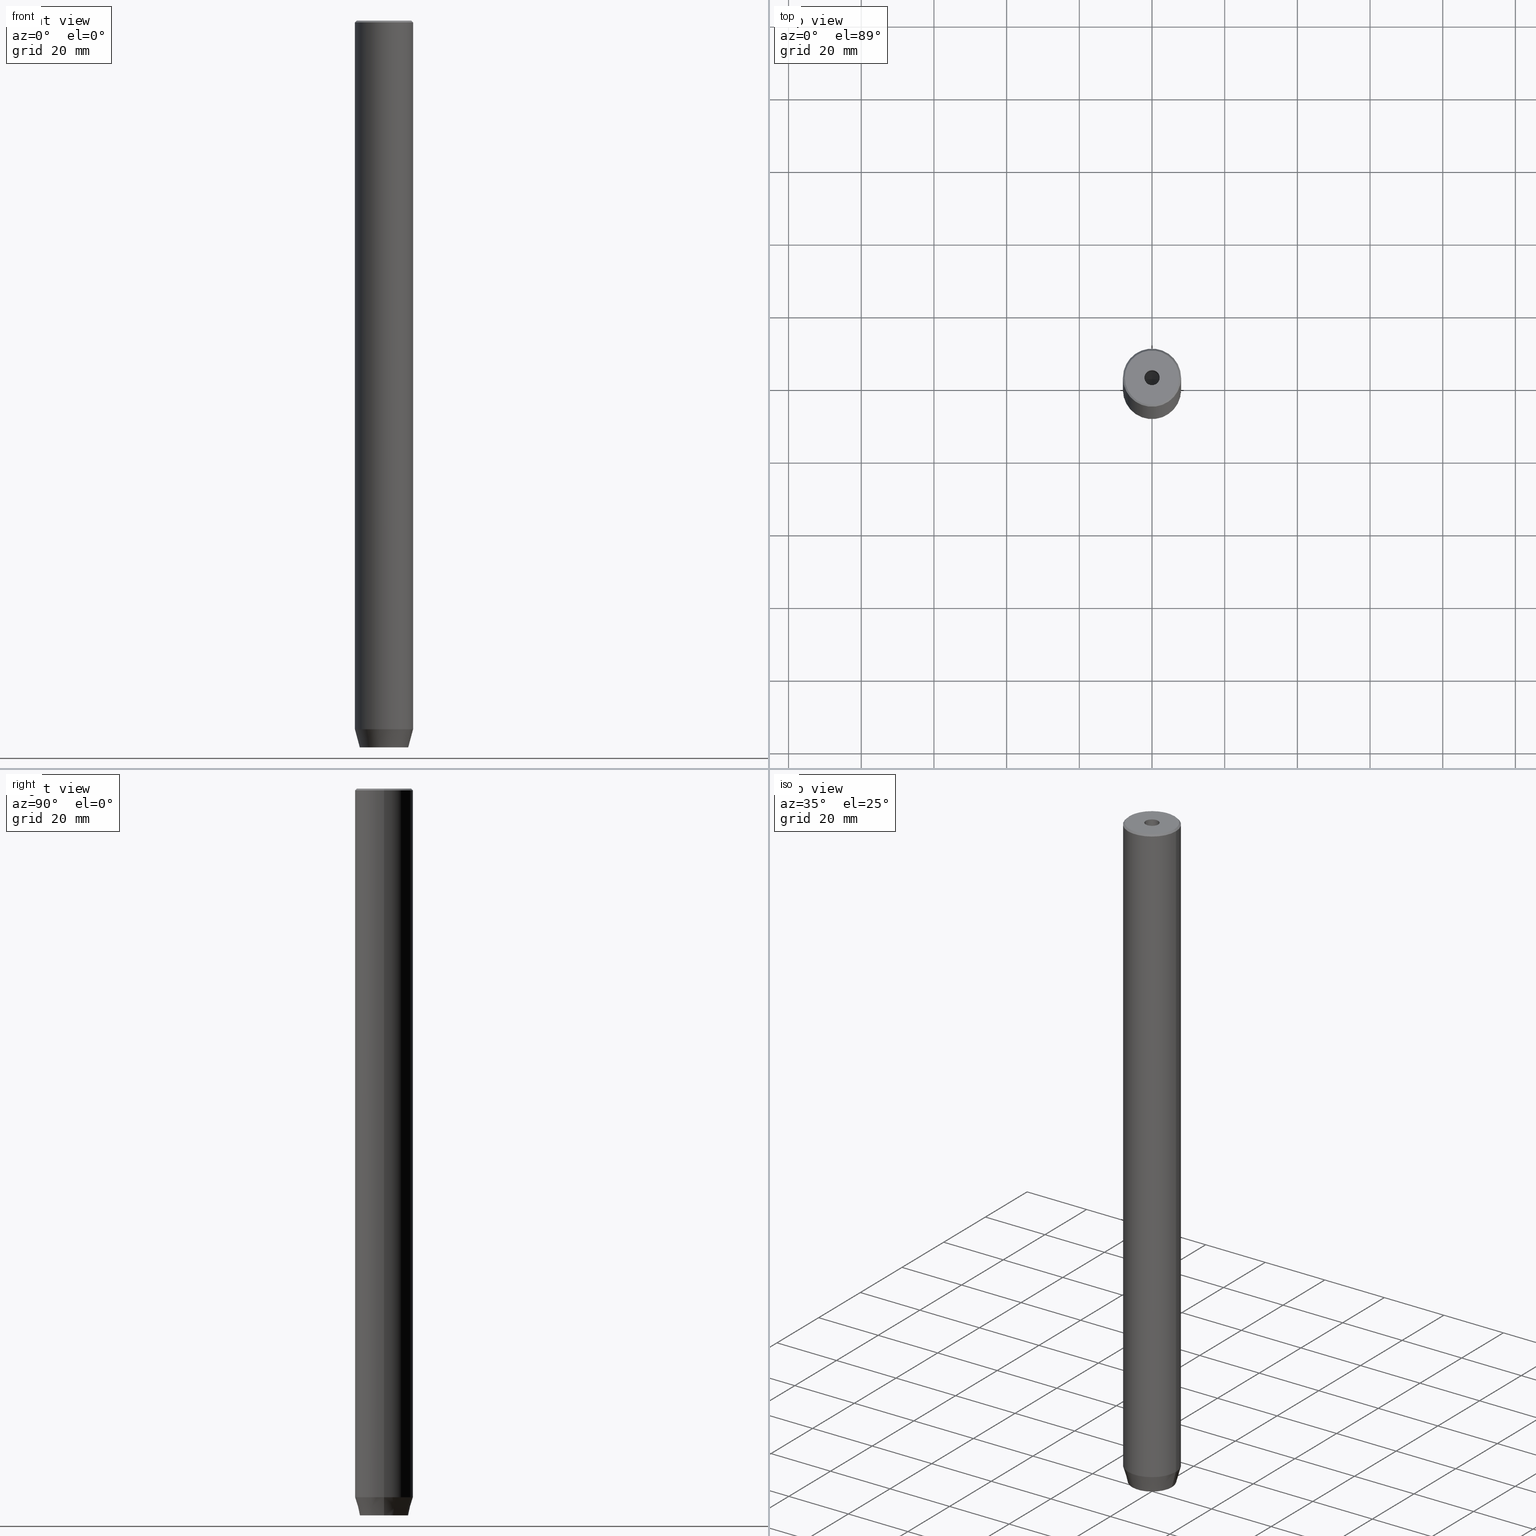
[diagram: canonical four-view strip — front | top / right | iso, engineering-drawing reading convention]
A machine part, canonical four-view strip (front | top / right | iso — engineering-drawing reading convention). The complete STEP part file that produces these views, byte-faithful:
ISO-10303-21;
HEADER;
FILE_DESCRIPTION (( 'STEP AP203' ),
    '1' );
FILE_NAME ('929a.STEP',
    '2024-01-02T20:38:08',
    ( '' ),
    ( '' ),
    'SwSTEP 2.0',
    'SolidWorks 2019',
    '' );
FILE_SCHEMA (( 'CONFIG_CONTROL_DESIGN' ));
ENDSEC;

DATA;
#1 = ORIENTED_EDGE ( 'NONE', *, *, #221, .T. ) ;
#2 = DIRECTION ( 'NONE',  ( -0.000000000000000000, -0.000000000000000000, 1.000000000000000000 ) ) ;
#3 = ORIENTED_EDGE ( 'NONE', *, *, #482, .T. ) ;
#4 = CARTESIAN_POINT ( 'NONE',  ( 0.000000000000000000, 0.000000000000000000, 0.000000000000000000 ) ) ;
#5 = ORIENTED_EDGE ( 'NONE', *, *, #334, .T. ) ;
#6 = LINE ( 'NONE', #587, #357 ) ;
#7 = PLANE ( 'NONE',  #215 ) ;
#8 = ADVANCED_FACE ( 'NONE', ( #364 ), #252, .T. ) ;
#9 = CC_DESIGN_PERSON_AND_ORGANIZATION_ASSIGNMENT ( #444, #572, ( #176 ) ) ;
#10 = CARTESIAN_POINT ( 'NONE',  ( 8.000000000000000000, 0.000000000000000000, -195.0000000000000000 ) ) ;
#11 = ORIENTED_EDGE ( 'NONE', *, *, #75, .F. ) ;
#12 = VERTEX_POINT ( 'NONE', #234 ) ;
#13 = AXIS2_PLACEMENT_3D ( 'NONE', #290, #149, #324 ) ;
#14 = ORIENTED_EDGE ( 'NONE', *, *, #75, .T. ) ;
#15 = AXIS2_PLACEMENT_3D ( 'NONE', #249, #292, #481 ) ;
#16 = VERTEX_POINT ( 'NONE', #92 ) ;
#17 = CARTESIAN_POINT ( 'NONE',  ( 1.500000000000000222, -2.598076211353315568, -197.2000000000000171 ) ) ;
#18 = DIRECTION ( 'NONE',  ( 0.000000000000000000, 0.000000000000000000, -1.000000000000000000 ) ) ;
#19 = EDGE_CURVE ( 'NONE', #490, #502, #282, .T. ) ;
#20 = DIRECTION ( 'NONE',  ( 1.000000000000000000, 0.000000000000000000, 0.000000000000000000 ) ) ;
#21 = APPLICATION_CONTEXT ( 'configuration controlled 3d designs of mechanical parts and assemblies' ) ;
#22 = LINE ( 'NONE', #242, #163 ) ;
#23 = AXIS2_PLACEMENT_3D ( 'NONE', #581, #546, #504 ) ;
#24 = VECTOR ( 'NONE', #550, 1000.000000000000000 ) ;
#25 = DIRECTION ( 'NONE',  ( 0.8660254037844385966, -0.5000000000000001110, 0.000000000000000000 ) ) ;
#26 = COORDINATED_UNIVERSAL_TIME_OFFSET ( 1, 0, .AHEAD. ) ;
#27 = LINE ( 'NONE', #206, #60 ) ;
#28 = DIRECTION ( 'NONE',  ( 1.000000000000000000, 0.000000000000000000, 0.000000000000000000 ) ) ;
#29 = CYLINDRICAL_SURFACE ( 'NONE', #87, 2.099999999999997424 ) ;
#30 = CARTESIAN_POINT ( 'NONE',  ( 2.099999999999996092, 0.000000000000000000, -20.00000000000000000 ) ) ;
#31 = ADVANCED_FACE ( 'NONE', ( #478 ), #577, .F. ) ;
#32 = LINE ( 'NONE', #281, #328 ) ;
#33 = ORIENTED_EDGE ( 'NONE', *, *, #396, .F. ) ;
#34 = APPROVAL_DATE_TIME ( #390, #51 ) ;
#35 = EDGE_CURVE ( 'NONE', #259, #104, #32, .T. ) ;
#36 = SECURITY_CLASSIFICATION_LEVEL ( 'unclassified' ) ;
#37 = LINE ( 'NONE', #437, #247 ) ;
#38 = CALENDAR_DATE ( 2024, 2, 1 ) ;
#39 = AXIS2_PLACEMENT_3D ( 'NONE', #467, #571, #325 ) ;
#40 = DIRECTION ( 'NONE',  ( 0.000000000000000000, 0.000000000000000000, -1.000000000000000000 ) ) ;
#41 = ORIENTED_EDGE ( 'NONE', *, *, #287, .F. ) ;
#42 = PLANE ( 'NONE',  #238 ) ;
#43 = ORIENTED_EDGE ( 'NONE', *, *, #266, .F. ) ;
#44 = ORIENTED_EDGE ( 'NONE', *, *, #19, .F. ) ;
#45 = CARTESIAN_POINT ( 'NONE',  ( -8.000000000000000000, 9.797174393178825657E-16, -195.0000000000000000 ) ) ;
#46 = LOCAL_TIME ( 21, 38, 8.000000000000000000, #532 ) ;
#47 = ORIENTED_EDGE ( 'NONE', *, *, #349, .T. ) ;
#48 = LINE ( 'NONE', #499, #442 ) ;
#49 = ADVANCED_FACE ( 'NONE', ( #121 ), #71, .F. ) ;
#50 = ORIENTED_EDGE ( 'NONE', *, *, #88, .T. ) ;
#51 = APPROVAL ( #342, 'NEUR�EN�' ) ;
#52 = DIRECTION ( 'NONE',  ( 1.000000000000000000, 0.000000000000000000, 0.000000000000000000 ) ) ;
#53 = ORIENTED_EDGE ( 'NONE', *, *, #541, .T. ) ;
#54 = DIRECTION ( 'NONE',  ( 0.000000000000000000, 0.000000000000000000, 1.000000000000000000 ) ) ;
#55 = DIRECTION ( 'NONE',  ( -0.8660254037844385966, 0.5000000000000001110, 0.000000000000000000 ) ) ;
#56 = DIRECTION ( 'NONE',  ( -0.000000000000000000, -0.000000000000000000, 1.000000000000000000 ) ) ;
#57 = VECTOR ( 'NONE', #451, 1000.000000000000000 ) ;
#58 = DIRECTION ( 'NONE',  ( 1.000000000000000000, 0.000000000000000000, 0.000000000000000000 ) ) ;
#59 = LINE ( 'NONE', #175, #162 ) ;
#60 = VECTOR ( 'NONE', #197, 1000.000000000000000 ) ;
#61 = ADVANCED_FACE ( 'NONE', ( #201 ), #507, .F. ) ;
#62 = AXIS2_PLACEMENT_3D ( 'NONE', #17, #116, #413 ) ;
#63 =( NAMED_UNIT ( * ) SI_UNIT ( $, .STERADIAN. ) SOLID_ANGLE_UNIT ( ) );
#64 = VERTEX_POINT ( 'NONE', #436 ) ;
#65 = UNCERTAINTY_MEASURE_WITH_UNIT (LENGTH_MEASURE( 1.000000000000000082E-05 ), #152, 'distance_accuracy_value', 'NONE');
#66 = LINE ( 'NONE', #156, #544 ) ;
#67 = PERSON_AND_ORGANIZATION_ROLE ( 'creator' ) ;
#68 = DIRECTION ( 'NONE',  ( -0.000000000000000000, -0.000000000000000000, -1.000000000000000000 ) ) ;
#69 = EDGE_CURVE ( 'NONE', #128, #16, #337, .T. ) ;
#70 = COORDINATED_UNIVERSAL_TIME_OFFSET ( 1, 0, .AHEAD. ) ;
#71 = PLANE ( 'NONE',  #263 ) ;
#72 = COORDINATED_UNIVERSAL_TIME_OFFSET ( 1, 0, .AHEAD. ) ;
#73 = PERSON_AND_ORGANIZATION ( #240, #416 ) ;
#74 = LINE ( 'NONE', #533, #417 ) ;
#75 = EDGE_CURVE ( 'NONE', #94, #449, #383, .T. ) ;
#76 = AXIS2_PLACEMENT_3D ( 'NONE', #362, #174, #142 ) ;
#77 = AXIS2_PLACEMENT_3D ( 'NONE', #578, #295, #28 ) ;
#78 = AXIS2_PLACEMENT_3D ( 'NONE', #272, #18, #509 ) ;
#79 = APPROVAL_STATUS ( 'not_yet_approved' ) ;
#80 = APPLICATION_CONTEXT ( 'configuration controlled 3d designs of mechanical parts and assemblies' ) ;
#81 = CARTESIAN_POINT ( 'NONE',  ( -1.499999999999999556, 2.598076211353316012, -197.2000000000000171 ) ) ;
#82 = ORIENTED_EDGE ( 'NONE', *, *, #132, .F. ) ;
#83 = ORIENTED_EDGE ( 'NONE', *, *, #541, .F. ) ;
#84 = FACE_OUTER_BOUND ( 'NONE', #119, .T. ) ;
#85 = APPROVAL_PERSON_ORGANIZATION ( #391, #51, #257 ) ;
#86 = AXIS2_PLACEMENT_3D ( 'NONE', #464, #414, #315 ) ;
#87 = AXIS2_PLACEMENT_3D ( 'NONE', #316, #246, #528 ) ;
#88 = EDGE_CURVE ( 'NONE', #402, #128, #584, .T. ) ;
#89 = CARTESIAN_POINT ( 'NONE',  ( 8.000000000000000000, 0.000000000000000000, -195.0000000000000000 ) ) ;
#90 = ORIENTED_EDGE ( 'NONE', *, *, #19, .T. ) ;
#91 = CARTESIAN_POINT ( 'NONE',  ( -3.000000000000000888, 1.732050807568876527, -197.2000000000000171 ) ) ;
#92 = CARTESIAN_POINT ( 'NONE',  ( 2.099999999999998757, 0.000000000000000000, -1.990051048614449116E-16 ) ) ;
#93 = CARTESIAN_POINT ( 'NONE',  ( 0.000000000000000000, 0.000000000000000000, 0.000000000000000000 ) ) ;
#94 = VERTEX_POINT ( 'NONE', #466 ) ;
#95 = LINE ( 'NONE', #91, #57 ) ;
#96 = EDGE_CURVE ( 'NONE', #495, #186, #501, .T. ) ;
#97 = CARTESIAN_POINT ( 'NONE',  ( 3.000000000000000000, 0.000000000000000000, -200.0000000000000000 ) ) ;
#98 = ORIENTED_EDGE ( 'NONE', *, *, #170, .T. ) ;
#99 = AXIS2_PLACEMENT_3D ( 'NONE', #513, #377, #566 ) ;
#100 = CARTESIAN_POINT ( 'NONE',  ( 6.660254037844381969, 0.000000000000000000, -200.0000000000000000 ) ) ;
#101 = VECTOR ( 'NONE', #348, 1000.000000000000000 ) ;
#102 = VERTEX_POINT ( 'NONE', #190 ) ;
#103 = CARTESIAN_POINT ( 'NONE',  ( 0.000000000000000000, 0.000000000000000000, -195.0000000000000000 ) ) ;
#104 = VERTEX_POINT ( 'NONE', #151 ) ;
#105 = DIRECTION ( 'NONE',  ( -0.7071067811865279218, 0.000000000000000000, -0.7071067811865672237 ) ) ;
#106 = DIRECTION ( 'NONE',  ( -0.000000000000000000, -0.000000000000000000, -1.000000000000000000 ) ) ;
#107 = DIRECTION ( 'NONE',  ( 0.2588190451025213501, 0.000000000000000000, 0.9659258262890680902 ) ) ;
#108 = ADVANCED_FACE ( 'NONE', ( #426 ), #296, .T. ) ;
#109 = CIRCLE ( 'NONE', #484, 2.099999999999996092 ) ;
#110 = DIRECTION ( 'NONE',  ( -0.000000000000000000, -0.000000000000000000, -1.000000000000000000 ) ) ;
#111 = ORIENTED_EDGE ( 'NONE', *, *, #387, .F. ) ;
#112 = AXIS2_PLACEMENT_3D ( 'NONE', #103, #411, #361 ) ;
#113 = AXIS2_PLACEMENT_3D ( 'NONE', #359, #303, #220 ) ;
#114 = VECTOR ( 'NONE', #110, 1000.000000000000000 ) ;
#115 = CARTESIAN_POINT ( 'NONE',  ( 0.000000000000000000, 0.000000000000000000, -1.990051048614449116E-16 ) ) ;
#116 = DIRECTION ( 'NONE',  ( 0.5000000000000001110, -0.8660254037844385966, 0.000000000000000000 ) ) ;
#117 = DIRECTION ( 'NONE',  ( 1.000000000000000000, 0.000000000000000000, 0.000000000000000000 ) ) ;
#118 = CARTESIAN_POINT ( 'NONE',  ( -2.168404344971008868E-16, -3.464101615137754830, -197.2000000000000171 ) ) ;
#119 = EDGE_LOOP ( 'NONE', ( #399, #294, #374, #559, #178, #173 ) ) ;
#120 = ADVANCED_FACE ( 'NONE', ( #288 ), #385, .F. ) ;
#121 = FACE_OUTER_BOUND ( 'NONE', #258, .T. ) ;
#122 = DIRECTION ( 'NONE',  ( -0.000000000000000000, -0.000000000000000000, -1.000000000000000000 ) ) ;
#123 = VECTOR ( 'NONE', #398, 1000.000000000000000 ) ;
#124 = DIRECTION ( 'NONE',  ( 1.000000000000000000, 0.000000000000000000, 0.000000000000000000 ) ) ;
#125 = PERSON_AND_ORGANIZATION_ROLE ( 'classification_officer' ) ;
#126 = LINE ( 'NONE', #565, #308 ) ;
#127 = EDGE_CURVE ( 'NONE', #331, #537, #343, .T. ) ;
#128 = VERTEX_POINT ( 'NONE', #519 ) ;
#129 = LOCAL_TIME ( 21, 38, 8.000000000000000000, #244 ) ;
#130 = VECTOR ( 'NONE', #106, 1000.000000000000000 ) ;
#131 = DIRECTION ( 'NONE',  ( 1.000000000000000000, 0.000000000000000000, 0.000000000000000000 ) ) ;
#132 = EDGE_CURVE ( 'NONE', #16, #128, #225, .T. ) ;
#133 = CARTESIAN_POINT ( 'NONE',  ( 1.500000000000000222, -2.598076211353315568, -197.2000000000000171 ) ) ;
#134 = EDGE_LOOP ( 'NONE', ( #195, #98, #339, #392 ) ) ;
#135 = CARTESIAN_POINT ( 'NONE',  ( -2.099999999999997424, 2.571758278209438506E-16, 0.000000000000000000 ) ) ;
#136 = ADVANCED_BREP_SHAPE_REPRESENTATION ( '929a', ( #485, #183 ), #475 ) ;
#137 = ORIENTED_EDGE ( 'NONE', *, *, #189, .F. ) ;
#138 = PLANE ( 'NONE',  #557 ) ;
#139 = ORIENTED_EDGE ( 'NONE', *, *, #189, .T. ) ;
#140 = DIRECTION ( 'NONE',  ( 2.503857664561933362E-16, -1.000000000000000000, 0.000000000000000000 ) ) ;
#141 = APPROVAL ( #570, 'NEUR�EN�' ) ;
#142 = DIRECTION ( 'NONE',  ( -0.000000000000000000, 0.000000000000000000, -1.000000000000000000 ) ) ;
#143 = ORIENTED_EDGE ( 'NONE', *, *, #241, .F. ) ;
#144 = FACE_BOUND ( 'NONE', #497, .T. ) ;
#145 = AXIS2_PLACEMENT_3D ( 'NONE', #193, #198, #124 ) ;
#146 = ORIENTED_EDGE ( 'NONE', *, *, #482, .F. ) ;
#147 = PERSON_AND_ORGANIZATION ( #240, #416 ) ;
#148 = VERTEX_POINT ( 'NONE', #150 ) ;
#149 = DIRECTION ( 'NONE',  ( 0.000000000000000000, 0.000000000000000000, -1.000000000000000000 ) ) ;
#150 = CARTESIAN_POINT ( 'NONE',  ( -3.000000000000000888, 1.732050807568876527, -197.2000000000000171 ) ) ;
#151 = CARTESIAN_POINT ( 'NONE',  ( 3.000000000000000000, 1.732050807568876527, -200.0000000000000000 ) ) ;
#152 =( LENGTH_UNIT ( ) NAMED_UNIT ( * ) SI_UNIT ( .MILLI., .METRE. ) );
#153 = ORIENTED_EDGE ( 'NONE', *, *, #582, .F. ) ;
#154 = AXIS2_PLACEMENT_3D ( 'NONE', #336, #333, #431 ) ;
#155 = VECTOR ( 'NONE', #341, 1000.000000000000000 ) ;
#156 = CARTESIAN_POINT ( 'NONE',  ( 2.099999999999997424, 0.000000000000000000, 0.000000000000000000 ) ) ;
#157 = CARTESIAN_POINT ( 'NONE',  ( 3.000000000000000000, 1.732050807568876527, -197.2000000000000171 ) ) ;
#158 = EDGE_CURVE ( 'NONE', #537, #331, #168, .T. ) ;
#159 = SHAPE_DEFINITION_REPRESENTATION ( #421, #136 ) ;
#160 = APPROVAL_DATE_TIME ( #574, #330 ) ;
#161 = PRODUCT ( '929a', '929a', '', ( #560 ) ) ;
#162 = VECTOR ( 'NONE', #271, 1000.000000000000000 ) ;
#163 = VECTOR ( 'NONE', #122, 1000.000000000000000 ) ;
#164 = EDGE_CURVE ( 'NONE', #452, #304, #381, .T. ) ;
#165 = CARTESIAN_POINT ( 'NONE',  ( 1.500000000000000222, -2.598076211353315568, -200.0000000000000000 ) ) ;
#166 = DIRECTION ( 'NONE',  ( -2.503857664561932376E-16, 1.000000000000000000, 0.000000000000000000 ) ) ;
#167 = SECURITY_CLASSIFICATION ( '', '', #36 ) ;
#168 = CIRCLE ( 'NONE', #299, 7.500000000000034639 ) ;
#169 = LINE ( 'NONE', #250, #368 ) ;
#170 = EDGE_CURVE ( 'NONE', #537, #94, #37, .T. ) ;
#171 = LINE ( 'NONE', #260, #569 ) ;
#172 = ORIENTED_EDGE ( 'NONE', *, *, #177, .F. ) ;
#173 = ORIENTED_EDGE ( 'NONE', *, *, #177, .T. ) ;
#174 = DIRECTION ( 'NONE',  ( 1.000000000000000000, 0.000000000000000000, -0.000000000000000000 ) ) ;
#175 = CARTESIAN_POINT ( 'NONE',  ( -1.500000000000000666, -2.598076211353316456, -197.2000000000000171 ) ) ;
#176 = PRODUCT_DEFINITION_FORMATION_WITH_SPECIFIED_SOURCE ( 'LIBOVOLN�', '', #161, .NOT_KNOWN. ) ;
#177 = EDGE_CURVE ( 'NONE', #64, #148, #169, .T. ) ;
#178 = ORIENTED_EDGE ( 'NONE', *, *, #212, .T. ) ;
#179 = CARTESIAN_POINT ( 'NONE',  ( -8.000000000000000000, 9.797174393178825657E-16, -0.4999999999999935052 ) ) ;
#180 = FACE_OUTER_BOUND ( 'NONE', #542, .T. ) ;
#181 = DIRECTION ( 'NONE',  ( 0.000000000000000000, 0.000000000000000000, -1.000000000000000000 ) ) ;
#182 = CARTESIAN_POINT ( 'NONE',  ( -2.168404344971008868E-16, -3.464101615137754830, -197.2000000000000171 ) ) ;
#183 = AXIS2_PLACEMENT_3D ( 'NONE', #327, #54, #20 ) ;
#184 = ORIENTED_EDGE ( 'NONE', *, *, #127, .T. ) ;
#185 = CIRCLE ( 'NONE', #86, 2.099999999999996092 ) ;
#186 = VERTEX_POINT ( 'NONE', #210 ) ;
#187 = ORIENTED_EDGE ( 'NONE', *, *, #576, .T. ) ;
#188 = CARTESIAN_POINT ( 'NONE',  ( 0.000000000000000000, 0.000000000000000000, 0.000000000000000000 ) ) ;
#189 = EDGE_CURVE ( 'NONE', #104, #12, #535, .T. ) ;
#190 = CARTESIAN_POINT ( 'NONE',  ( -5.207640850796248781E-15, 0.000000000000000000, -21.26180729995787999 ) ) ;
#191 =( NAMED_UNIT ( * ) PLANE_ANGLE_UNIT ( ) SI_UNIT ( $, .RADIAN. ) );
#192 = EDGE_LOOP ( 'NONE', ( #420, #50, #548, #306 ) ) ;
#193 = CARTESIAN_POINT ( 'NONE',  ( 0.000000000000000000, 0.000000000000000000, -200.0000000000000000 ) ) ;
#194 = ADVANCED_FACE ( 'NONE', ( #268 ), #350, .T. ) ;
#195 = ORIENTED_EDGE ( 'NONE', *, *, #158, .F. ) ;
#196 = CARTESIAN_POINT ( 'NONE',  ( 0.000000000000000000, 0.000000000000000000, -200.0000000000000000 ) ) ;
#197 = DIRECTION ( 'NONE',  ( -0.000000000000000000, -0.000000000000000000, 1.000000000000000000 ) ) ;
#198 = DIRECTION ( 'NONE',  ( -0.000000000000000000, -0.000000000000000000, 1.000000000000000000 ) ) ;
#199 = EDGE_CURVE ( 'NONE', #402, #219, #185, .T. ) ;
#200 = DIRECTION ( 'NONE',  ( 0.000000000000000000, -1.000000000000000000, 0.000000000000000000 ) ) ;
#201 = FACE_OUTER_BOUND ( 'NONE', #352, .T. ) ;
#202 = CARTESIAN_POINT ( 'NONE',  ( -3.000000000000000888, 1.732050807568876527, -200.0000000000000000 ) ) ;
#203 = AXIS2_PLACEMENT_3D ( 'NONE', #508, #461, #424 ) ;
#204 = LOCAL_TIME ( 21, 38, 8.000000000000000000, #72 ) ;
#205 = PERSON_AND_ORGANIZATION_ROLE ( 'design_supplier' ) ;
#206 = CARTESIAN_POINT ( 'NONE',  ( 8.000000000000000000, 0.000000000000000000, 0.000000000000000000 ) ) ;
#207 = VERTEX_POINT ( 'NONE', #471 ) ;
#208 = DATE_AND_TIME ( #38, #204 ) ;
#209 = DIRECTION ( 'NONE',  ( 0.8660254037844387076, 0.4999999999999999445, 0.000000000000000000 ) ) ;
#210 = CARTESIAN_POINT ( 'NONE',  ( 3.000000000000000000, -1.732050807568876527, -197.2000000000000171 ) ) ;
#211 = DATE_TIME_ROLE ( 'classification_date' ) ;
#212 = EDGE_CURVE ( 'NONE', #313, #64, #59, .T. ) ;
#213 = LINE ( 'NONE', #165, #155 ) ;
#214 = CC_DESIGN_DATE_AND_TIME_ASSIGNMENT ( #208, #211, ( #167 ) ) ;
#215 = AXIS2_PLACEMENT_3D ( 'NONE', #227, #408, #140 ) ;
#216 = CARTESIAN_POINT ( 'NONE',  ( -1.500000000000000666, -2.598076211353316456, -200.0000000000000000 ) ) ;
#217 = FACE_OUTER_BOUND ( 'NONE', #276, .T. ) ;
#218 = DIRECTION ( 'NONE',  ( 0.000000000000000000, 0.000000000000000000, -1.000000000000000000 ) ) ;
#219 = VERTEX_POINT ( 'NONE', #30 ) ;
#220 = DIRECTION ( 'NONE',  ( 1.000000000000000000, 0.000000000000000000, 0.000000000000000000 ) ) ;
#221 = EDGE_CURVE ( 'NONE', #102, #402, #344, .T. ) ;
#222 = ORIENTED_EDGE ( 'NONE', *, *, #287, .T. ) ;
#223 = ORIENTED_EDGE ( 'NONE', *, *, #389, .T. ) ;
#224 = FACE_OUTER_BOUND ( 'NONE', #235, .T. ) ;
#225 = CIRCLE ( 'NONE', #430, 2.099999999999998757 ) ;
#226 = CC_DESIGN_PERSON_AND_ORGANIZATION_ASSIGNMENT ( #73, #125, ( #167 ) ) ;
#227 = CARTESIAN_POINT ( 'NONE',  ( -3.000000000000000444, -7.511572993685800087E-16, -197.2000000000000171 ) ) ;
#228 = EDGE_LOOP ( 'NONE', ( #427, #549, #172, #262 ) ) ;
#229 = FACE_OUTER_BOUND ( 'NONE', #228, .T. ) ;
#230 = ORIENTED_EDGE ( 'NONE', *, *, #164, .F. ) ;
#231 = VERTEX_POINT ( 'NONE', #538 ) ;
#232 = PLANE ( 'NONE',  #62 ) ;
#233 = ADVANCED_FACE ( 'NONE', ( #356 ), #248, .T. ) ;
#234 = CARTESIAN_POINT ( 'NONE',  ( 3.000000000000000000, -1.732050807568876527, -200.0000000000000000 ) ) ;
#235 = EDGE_LOOP ( 'NONE', ( #347, #222, #90, #239 ) ) ;
#236 = VECTOR ( 'NONE', #68, 1000.000000000000000 ) ;
#237 = FACE_OUTER_BOUND ( 'NONE', #321, .T. ) ;
#238 = AXIS2_PLACEMENT_3D ( 'NONE', #267, #401, #366 ) ;
#239 = ORIENTED_EDGE ( 'NONE', *, *, #349, .F. ) ;
#240 = PERSON ( 'NEUR�EN�', 'NEUR�EN�', 'NEUR�EN�', ('NEUR�EN�'), ('NEUR�EN�'), ('NEUR�EN�') ) ;
#241 = EDGE_CURVE ( 'NONE', #313, #231, #312, .T. ) ;
#242 = CARTESIAN_POINT ( 'NONE',  ( -1.084202172485504434E-16, 3.464101615137754830, -197.2000000000000171 ) ) ;
#243 = CARTESIAN_POINT ( 'NONE',  ( -3.000000000000000444, -7.511572993685800087E-16, -200.0000000000000000 ) ) ;
#244 = COORDINATED_UNIVERSAL_TIME_OFFSET ( 1, 0, .AHEAD. ) ;
#245 = FACE_OUTER_BOUND ( 'NONE', #511, .T. ) ;
#246 = DIRECTION ( 'NONE',  ( -0.000000000000000000, -0.000000000000000000, 1.000000000000000000 ) ) ;
#247 = VECTOR ( 'NONE', #529, 1000.000000000000000 ) ;
#248 = CONICAL_SURFACE ( 'NONE', #78, 7.500000000000034639, 0.7853981633974205234 ) ;
#249 = CARTESIAN_POINT ( 'NONE',  ( 0.000000000000000000, 0.000000000000000000, -20.00000000000000000 ) ) ;
#250 = CARTESIAN_POINT ( 'NONE',  ( -3.000000000000000444, -7.511572993685800087E-16, -197.2000000000000171 ) ) ;
#251 = APPROVAL_ROLE ( '' ) ;
#252 = CONICAL_SURFACE ( 'NONE', #112, 8.000000000000000000, 0.2617993877991500740 ) ;
#253 = ORIENTED_EDGE ( 'NONE', *, *, #582, .T. ) ;
#254 = PERSON_AND_ORGANIZATION ( #240, #416 ) ;
#255 = CC_DESIGN_DATE_AND_TIME_ASSIGNMENT ( #280, #443, ( #340 ) ) ;
#256 = EDGE_CURVE ( 'NONE', #186, #12, #74, .T. ) ;
#257 = APPROVAL_ROLE ( '' ) ;
#258 = EDGE_LOOP ( 'NONE', ( #370, #488, #446, #551 ) ) ;
#259 = VERTEX_POINT ( 'NONE', #301 ) ;
#260 = CARTESIAN_POINT ( 'NONE',  ( -8.000000000000000000, 9.797174393178825657E-16, 0.000000000000000000 ) ) ;
#261 = CIRCLE ( 'NONE', #473, 8.000000000000000000 ) ;
#262 = ORIENTED_EDGE ( 'NONE', *, *, #278, .T. ) ;
#263 = AXIS2_PLACEMENT_3D ( 'NONE', #465, #527, #55 ) ;
#264 = ORIENTED_EDGE ( 'NONE', *, *, #199, .T. ) ;
#265 = CARTESIAN_POINT ( 'NONE',  ( 0.000000000000000000, 0.000000000000000000, 0.000000000000000000 ) ) ;
#266 = EDGE_CURVE ( 'NONE', #12, #231, #213, .T. ) ;
#267 = CARTESIAN_POINT ( 'NONE',  ( -1.500000000000000666, -2.598076211353316456, -197.2000000000000171 ) ) ;
#268 = FACE_OUTER_BOUND ( 'NONE', #310, .T. ) ;
#269 = ORIENTED_EDGE ( 'NONE', *, *, #212, .F. ) ;
#270 = DIRECTION ( 'NONE',  ( 0.8571673007021111124, 0.000000000000000000, 0.5150380749100562650 ) ) ;
#271 = DIRECTION ( 'NONE',  ( -0.8660254037844385966, 0.5000000000000001110, 0.000000000000000000 ) ) ;
#272 = CARTESIAN_POINT ( 'NONE',  ( 0.000000000000000000, 0.000000000000000000, 0.000000000000000000 ) ) ;
#273 = VECTOR ( 'NONE', #200, 1000.000000000000000 ) ;
#274 = AXIS2_PLACEMENT_3D ( 'NONE', #517, #423, #556 ) ;
#275 = CARTESIAN_POINT ( 'NONE',  ( -8.000000000000000000, 9.797174393178825657E-16, -195.0000000000000000 ) ) ;
#276 = EDGE_LOOP ( 'NONE', ( #555, #283, #269, #410 ) ) ;
#277 = DIRECTION ( 'NONE',  ( 1.000000000000000000, 0.000000000000000000, 0.000000000000000000 ) ) ;
#278 = EDGE_CURVE ( 'NONE', #64, #452, #520, .T. ) ;
#279 = ORIENTED_EDGE ( 'NONE', *, *, #293, .F. ) ;
#280 = DATE_AND_TIME ( #386, #129 ) ;
#281 = CARTESIAN_POINT ( 'NONE',  ( 1.500000000000000222, 2.598076211353315568, -200.0000000000000000 ) ) ;
#282 = LINE ( 'NONE', #10, #518 ) ;
#283 = ORIENTED_EDGE ( 'NONE', *, *, #278, .F. ) ;
#284 = FACE_OUTER_BOUND ( 'NONE', #192, .T. ) ;
#285 = FACE_OUTER_BOUND ( 'NONE', #498, .T. ) ;
#286 = LOCAL_TIME ( 21, 38, 8.000000000000000000, #70 ) ;
#287 = EDGE_CURVE ( 'NONE', #397, #490, #369, .T. ) ;
#288 = FACE_OUTER_BOUND ( 'NONE', #380, .T. ) ;
#289 = CARTESIAN_POINT ( 'NONE',  ( 0.000000000000000000, 0.000000000000000000, -20.00000000000000000 ) ) ;
#290 = CARTESIAN_POINT ( 'NONE',  ( 0.000000000000000000, 6.660254037844381969, -200.0000000000000000 ) ) ;
#291 = VECTOR ( 'NONE', #166, 1000.000000000000000 ) ;
#292 = DIRECTION ( 'NONE',  ( -0.000000000000000000, -0.000000000000000000, 1.000000000000000000 ) ) ;
#293 = EDGE_CURVE ( 'NONE', #148, #207, #345, .T. ) ;
#294 = ORIENTED_EDGE ( 'NONE', *, *, #487, .T. ) ;
#295 = DIRECTION ( 'NONE',  ( -0.000000000000000000, -0.000000000000000000, 1.000000000000000000 ) ) ;
#296 = CYLINDRICAL_SURFACE ( 'NONE', #23, 8.000000000000000000 ) ;
#297 = DIRECTION ( 'NONE',  ( -2.503857664561932376E-16, 1.000000000000000000, 0.000000000000000000 ) ) ;
#298 = APPROVAL_PERSON_ORGANIZATION ( #329, #141, #371 ) ;
#299 = AXIS2_PLACEMENT_3D ( 'NONE', #188, #515, #277 ) ;
#300 = ADVANCED_FACE ( 'NONE', ( #284 ), #564, .F. ) ;
#301 = CARTESIAN_POINT ( 'NONE',  ( -2.168404344971008868E-16, 3.464101615137754830, -200.0000000000000000 ) ) ;
#302 = ORIENTED_EDGE ( 'NONE', *, *, #326, .T. ) ;
#303 = DIRECTION ( 'NONE',  ( -0.000000000000000000, -0.000000000000000000, 1.000000000000000000 ) ) ;
#304 = VERTEX_POINT ( 'NONE', #202 ) ;
#305 = EDGE_CURVE ( 'NONE', #207, #259, #22, .T. ) ;
#306 = ORIENTED_EDGE ( 'NONE', *, *, #373, .F. ) ;
#307 = FACE_OUTER_BOUND ( 'NONE', #463, .T. ) ;
#308 = VECTOR ( 'NONE', #553, 999.9999999999998863 ) ;
#309 = VECTOR ( 'NONE', #448, 1000.000000000000000 ) ;
#310 = EDGE_LOOP ( 'NONE', ( #223, #450, #395, #338 ) ) ;
#311 = CARTESIAN_POINT ( 'NONE',  ( -3.000000000000000000, -1.732050807568877859, -200.0000000000000000 ) ) ;
#312 = LINE ( 'NONE', #182, #130 ) ;
#313 = VERTEX_POINT ( 'NONE', #118 ) ;
#314 = CARTESIAN_POINT ( 'NONE',  ( 0.000000000000000000, 0.000000000000000000, -197.2000000000000171 ) ) ;
#315 = DIRECTION ( 'NONE',  ( 1.000000000000000000, 0.000000000000000000, 0.000000000000000000 ) ) ;
#316 = CARTESIAN_POINT ( 'NONE',  ( 0.000000000000000000, 0.000000000000000000, 0.000000000000000000 ) ) ;
#317 = ORIENTED_EDGE ( 'NONE', *, *, #96, .F. ) ;
#318 = ORIENTED_EDGE ( 'NONE', *, *, #266, .T. ) ;
#319 = FACE_BOUND ( 'NONE', #524, .T. ) ;
#320 = ADVANCED_FACE ( 'NONE', ( #245 ), #29, .F. ) ;
#321 = EDGE_LOOP ( 'NONE', ( #83, #41 ) ) ;
#322 = CARTESIAN_POINT ( 'NONE',  ( -7.500000000000034639, 0.000000000000000000, 0.000000000000000000 ) ) ;
#323 = ORIENTED_EDGE ( 'NONE', *, *, #35, .F. ) ;
#324 = DIRECTION ( 'NONE',  ( -1.000000000000000000, 0.000000000000000000, -0.000000000000000000 ) ) ;
#325 = DIRECTION ( 'NONE',  ( -0.8660254037844387076, -0.4999999999999999445, 0.000000000000000000 ) ) ;
#326 = EDGE_CURVE ( 'NONE', #502, #94, #27, .T. ) ;
#327 = CARTESIAN_POINT ( 'NONE',  ( 0.000000000000000000, 0.000000000000000000, 0.000000000000000000 ) ) ;
#328 = VECTOR ( 'NONE', #25, 1000.000000000000000 ) ;
#329 = PERSON_AND_ORGANIZATION ( #240, #416 ) ;
#330 = APPROVAL ( #79, 'NEUR�EN�' ) ;
#331 = VERTEX_POINT ( 'NONE', #573 ) ;
#332 = DIRECTION ( 'NONE',  ( -0.8660254037844385966, 0.5000000000000001110, 0.000000000000000000 ) ) ;
#333 = DIRECTION ( 'NONE',  ( -0.000000000000000000, -0.000000000000000000, 1.000000000000000000 ) ) ;
#334 = EDGE_CURVE ( 'NONE', #304, #259, #126, .T. ) ;
#335 = APPROVAL_PERSON_ORGANIZATION ( #440, #330, #251 ) ;
#336 = CARTESIAN_POINT ( 'NONE',  ( 0.000000000000000000, 0.000000000000000000, -20.00000000000000000 ) ) ;
#337 = CIRCLE ( 'NONE', #77, 2.099999999999998757 ) ;
#338 = ORIENTED_EDGE ( 'NONE', *, *, #326, .F. ) ;
#339 = ORIENTED_EDGE ( 'NONE', *, *, #534, .F. ) ;
#340 = PRODUCT_DEFINITION ( 'NEZN�M�', '', #176, #425 ) ;
#341 = DIRECTION ( 'NONE',  ( -0.8660254037844385966, -0.5000000000000001110, 0.000000000000000000 ) ) ;
#342 = APPROVAL_STATUS ( 'not_yet_approved' ) ;
#343 = CIRCLE ( 'NONE', #99, 7.500000000000034639 ) ;
#344 = LINE ( 'NONE', #491, #101 ) ;
#345 = LINE ( 'NONE', #81, #480 ) ;
#346 = CARTESIAN_POINT ( 'NONE',  ( 3.000000000000000000, 1.732050807568876527, -197.2000000000000171 ) ) ;
#347 = ORIENTED_EDGE ( 'NONE', *, *, #438, .F. ) ;
#348 = DIRECTION ( 'NONE',  ( -0.8571673007021111124, 1.049727191138617217E-16, 0.5150380749100562650 ) ) ;
#349 = EDGE_CURVE ( 'NONE', #445, #502, #474, .T. ) ;
#350 = CYLINDRICAL_SURFACE ( 'NONE', #526, 8.000000000000000000 ) ;
#351 = ORIENTED_EDGE ( 'NONE', *, *, #256, .T. ) ;
#352 = EDGE_LOOP ( 'NONE', ( #472, #3, #253 ) ) ;
#353 = LINE ( 'NONE', #45, #309 ) ;
#354 = AXIS2_PLACEMENT_3D ( 'NONE', #196, #512, #58 ) ;
#355 = CLOSED_SHELL ( 'NONE', ( #300, #31, #233, #8, #194, #567, #510, #108, #522, #447, #120, #407, #477, #586, #500, #49, #415, #61, #320 ) ) ;
#356 = FACE_OUTER_BOUND ( 'NONE', #134, .T. ) ;
#357 = VECTOR ( 'NONE', #459, 1000.000000000000000 ) ;
#358 = ORIENTED_EDGE ( 'NONE', *, *, #127, .F. ) ;
#359 = CARTESIAN_POINT ( 'NONE',  ( 0.000000000000000000, 0.000000000000000000, -195.0000000000000000 ) ) ;
#360 = DIRECTION ( 'NONE',  ( -0.000000000000000000, -0.000000000000000000, 1.000000000000000000 ) ) ;
#361 = DIRECTION ( 'NONE',  ( 1.000000000000000000, 0.000000000000000000, 0.000000000000000000 ) ) ;
#362 = CARTESIAN_POINT ( 'NONE',  ( 3.000000000000000000, 0.000000000000000000, -197.2000000000000171 ) ) ;
#363 = CC_DESIGN_PERSON_AND_ORGANIZATION_ASSIGNMENT ( #479, #67, ( #340 ) ) ;
#364 = FACE_OUTER_BOUND ( 'NONE', #428, .T. ) ;
#365 = ORIENTED_EDGE ( 'NONE', *, *, #256, .F. ) ;
#366 = DIRECTION ( 'NONE',  ( 0.8660254037844385966, -0.5000000000000001110, 0.000000000000000000 ) ) ;
#367 = ORIENTED_EDGE ( 'NONE', *, *, #132, .T. ) ;
#368 = VECTOR ( 'NONE', #297, 1000.000000000000000 ) ;
#369 = CIRCLE ( 'NONE', #145, 6.660254037844381969 ) ;
#370 = ORIENTED_EDGE ( 'NONE', *, *, #35, .T. ) ;
#371 = APPROVAL_ROLE ( '' ) ;
#372 = EDGE_LOOP ( 'NONE', ( #583, #47, #302, #14 ) ) ;
#373 = EDGE_CURVE ( 'NONE', #219, #16, #66, .T. ) ;
#374 = ORIENTED_EDGE ( 'NONE', *, *, #96, .T. ) ;
#375 = CALENDAR_DATE ( 2024, 2, 1 ) ;
#376 = ORIENTED_EDGE ( 'NONE', *, *, #438, .T. ) ;
#377 = DIRECTION ( 'NONE',  ( -0.000000000000000000, -0.000000000000000000, 1.000000000000000000 ) ) ;
#378 = PRODUCT_RELATED_PRODUCT_CATEGORY ( 'detail', '', ( #161 ) ) ;
#379 = CARTESIAN_POINT ( 'NONE',  ( 7.500000000000034639, 9.491012693392009481E-16, 0.000000000000000000 ) ) ;
#380 = EDGE_LOOP ( 'NONE', ( #5, #493, #279, #453 ) ) ;
#381 = LINE ( 'NONE', #243, #291 ) ;
#382 = CC_DESIGN_APPROVAL ( #51, ( #167 ) ) ;
#383 = CIRCLE ( 'NONE', #406, 8.000000000000000000 ) ;
#384 = APPLICATION_PROTOCOL_DEFINITION ( 'international standard', 'config_control_design', 1994, #80 ) ;
#385 = PLANE ( 'NONE',  #39 ) ;
#386 = CALENDAR_DATE ( 2024, 2, 1 ) ;
#387 = EDGE_CURVE ( 'NONE', #231, #452, #523, .T. ) ;
#388 = AXIS2_PLACEMENT_3D ( 'NONE', #4, #40, #552 ) ;
#389 = EDGE_CURVE ( 'NONE', #502, #445, #432, .T. ) ;
#390 = DATE_AND_TIME ( #486, #286 ) ;
#391 = PERSON_AND_ORGANIZATION ( #240, #416 ) ;
#392 = ORIENTED_EDGE ( 'NONE', *, *, #576, .F. ) ;
#393 = LINE ( 'NONE', #133, #24 ) ;
#394 = DIRECTION ( 'NONE',  ( -0.000000000000000000, -0.000000000000000000, -1.000000000000000000 ) ) ;
#395 = ORIENTED_EDGE ( 'NONE', *, *, #534, .T. ) ;
#396 = EDGE_CURVE ( 'NONE', #186, #313, #393, .T. ) ;
#397 = VERTEX_POINT ( 'NONE', #489 ) ;
#398 = DIRECTION ( 'NONE',  ( 0.000000000000000000, -1.000000000000000000, 0.000000000000000000 ) ) ;
#399 = ORIENTED_EDGE ( 'NONE', *, *, #293, .T. ) ;
#400 = ORIENTED_EDGE ( 'NONE', *, *, #158, .T. ) ;
#401 = DIRECTION ( 'NONE',  ( -0.5000000000000001110, -0.8660254037844385966, 0.000000000000000000 ) ) ;
#402 = VERTEX_POINT ( 'NONE', #494 ) ;
#403 = ORIENTED_EDGE ( 'NONE', *, *, #88, .F. ) ;
#404 = CARTESIAN_POINT ( 'NONE',  ( 0.000000000000000000, 0.000000000000000000, -195.0000000000000000 ) ) ;
#405 = AXIS2_PLACEMENT_3D ( 'NONE', #265, #554, #543 ) ;
#406 = AXIS2_PLACEMENT_3D ( 'NONE', #539, #218, #131 ) ;
#407 = ADVANCED_FACE ( 'NONE', ( #229 ), #7, .F. ) ;
#408 = DIRECTION ( 'NONE',  ( -1.000000000000000000, -2.503857664561933362E-16, 0.000000000000000000 ) ) ;
#409 = CARTESIAN_POINT ( 'NONE',  ( 0.000000000000000000, 0.000000000000000000, -0.4999999999999935052 ) ) ;
#410 = ORIENTED_EDGE ( 'NONE', *, *, #241, .T. ) ;
#411 = DIRECTION ( 'NONE',  ( -0.000000000000000000, -0.000000000000000000, 1.000000000000000000 ) ) ;
#412 = ORIENTED_EDGE ( 'NONE', *, *, #170, .F. ) ;
#413 = DIRECTION ( 'NONE',  ( 0.8660254037844385966, 0.5000000000000001110, 0.000000000000000000 ) ) ;
#414 = DIRECTION ( 'NONE',  ( -0.000000000000000000, -0.000000000000000000, 1.000000000000000000 ) ) ;
#415 = ADVANCED_FACE ( 'NONE', ( #84 ), #138, .T. ) ;
#416 = ORGANIZATION ( 'NEUR�EN�', 'NEUR�EN�', '' ) ;
#417 = VECTOR ( 'NONE', #394, 1000.000000000000000 ) ;
#418 = LINE ( 'NONE', #157, #114 ) ;
#419 = ORIENTED_EDGE ( 'NONE', *, *, #69, .F. ) ;
#420 = ORIENTED_EDGE ( 'NONE', *, *, #199, .F. ) ;
#421 = PRODUCT_DEFINITION_SHAPE ( 'NONE', 'NONE',  #340 ) ;
#422 = PLANE ( 'NONE',  #13 ) ;
#423 = DIRECTION ( 'NONE',  ( -0.000000000000000000, -0.000000000000000000, 1.000000000000000000 ) ) ;
#424 = DIRECTION ( 'NONE',  ( 1.000000000000000000, 0.000000000000000000, 0.000000000000000000 ) ) ;
#425 = DESIGN_CONTEXT ( 'detailed design', #80, 'design' ) ;
#426 = FACE_OUTER_BOUND ( 'NONE', #372, .T. ) ;
#427 = ORIENTED_EDGE ( 'NONE', *, *, #164, .T. ) ;
#428 = EDGE_LOOP ( 'NONE', ( #53, #376, #469, #44 ) ) ;
#429 = AXIS2_PLACEMENT_3D ( 'NONE', #404, #360, #52 ) ;
#430 = AXIS2_PLACEMENT_3D ( 'NONE', #115, #56, #563 ) ;
#431 = DIRECTION ( 'NONE',  ( 1.000000000000000000, 0.000000000000000000, 0.000000000000000000 ) ) ;
#432 = CIRCLE ( 'NONE', #113, 8.000000000000000000 ) ;
#433 = EDGE_CURVE ( 'NONE', #445, #449, #171, .T. ) ;
#434 = LINE ( 'NONE', #322, #516 ) ;
#435 = CC_DESIGN_PERSON_AND_ORGANIZATION_ASSIGNMENT ( #254, #205, ( #176 ) ) ;
#436 = CARTESIAN_POINT ( 'NONE',  ( -3.000000000000000000, -1.732050807568877859, -197.2000000000000171 ) ) ;
#437 = CARTESIAN_POINT ( 'NONE',  ( 7.500000000000034639, 9.184850993605191332E-16, 0.000000000000000000 ) ) ;
#438 = EDGE_CURVE ( 'NONE', #397, #445, #353, .T. ) ;
#439 = CC_DESIGN_APPROVAL ( #330, ( #176 ) ) ;
#440 = PERSON_AND_ORGANIZATION ( #240, #416 ) ;
#441 = VECTOR ( 'NONE', #332, 1000.000000000000000 ) ;
#442 = VECTOR ( 'NONE', #270, 1000.000000000000000 ) ;
#443 = DATE_TIME_ROLE ( 'creation_date' ) ;
#444 = PERSON_AND_ORGANIZATION ( #240, #416 ) ;
#445 = VERTEX_POINT ( 'NONE', #275 ) ;
#446 = ORIENTED_EDGE ( 'NONE', *, *, #487, .F. ) ;
#447 = ADVANCED_FACE ( 'NONE', ( #307 ), #496, .T. ) ;
#448 = DIRECTION ( 'NONE',  ( -0.2588190451025213501, 3.169619151431772337E-17, 0.9659258262890680902 ) ) ;
#449 = VERTEX_POINT ( 'NONE', #179 ) ;
#450 = ORIENTED_EDGE ( 'NONE', *, *, #433, .T. ) ;
#451 = DIRECTION ( 'NONE',  ( -0.000000000000000000, -0.000000000000000000, -1.000000000000000000 ) ) ;
#452 = VERTEX_POINT ( 'NONE', #311 ) ;
#453 = ORIENTED_EDGE ( 'NONE', *, *, #470, .T. ) ;
#454 = FACE_OUTER_BOUND ( 'NONE', #540, .T. ) ;
#455 = CC_DESIGN_PERSON_AND_ORGANIZATION_ASSIGNMENT ( #147, #568, ( #161 ) ) ;
#456 = CARTESIAN_POINT ( 'NONE',  ( 3.000000000000000000, 0.000000000000000000, -197.2000000000000171 ) ) ;
#457 = ORIENTED_EDGE ( 'NONE', *, *, #558, .T. ) ;
#458 = DIRECTION ( 'NONE',  ( -1.000000000000000000, 0.000000000000000000, -0.000000000000000000 ) ) ;
#459 = DIRECTION ( 'NONE',  ( 0.8660254037844385966, -0.5000000000000001110, 0.000000000000000000 ) ) ;
#460 = ORIENTED_EDGE ( 'NONE', *, *, #373, .T. ) ;
#461 = DIRECTION ( 'NONE',  ( -0.000000000000000000, -0.000000000000000000, 1.000000000000000000 ) ) ;
#462 = ORIENTED_EDGE ( 'NONE', *, *, #334, .F. ) ;
#463 = EDGE_LOOP ( 'NONE', ( #412, #358, #187, #11 ) ) ;
#464 = CARTESIAN_POINT ( 'NONE',  ( 0.000000000000000000, 0.000000000000000000, -20.00000000000000000 ) ) ;
#465 = CARTESIAN_POINT ( 'NONE',  ( 1.500000000000000222, 2.598076211353315568, -197.2000000000000171 ) ) ;
#466 = CARTESIAN_POINT ( 'NONE',  ( 8.000000000000000000, 0.000000000000000000, -0.4999999999999935052 ) ) ;
#467 = CARTESIAN_POINT ( 'NONE',  ( -1.499999999999999556, 2.598076211353316012, -197.2000000000000171 ) ) ;
#468 = DIRECTION ( 'NONE',  ( -0.000000000000000000, -0.000000000000000000, 1.000000000000000000 ) ) ;
#469 = ORIENTED_EDGE ( 'NONE', *, *, #389, .F. ) ;
#470 = EDGE_CURVE ( 'NONE', #148, #304, #95, .T. ) ;
#471 = CARTESIAN_POINT ( 'NONE',  ( -1.084202172485504434E-16, 3.464101615137754830, -197.2000000000000171 ) ) ;
#472 = ORIENTED_EDGE ( 'NONE', *, *, #221, .F. ) ;
#473 = AXIS2_PLACEMENT_3D ( 'NONE', #409, #181, #117 ) ;
#474 = CIRCLE ( 'NONE', #203, 8.000000000000000000 ) ;
#475 =( GEOMETRIC_REPRESENTATION_CONTEXT ( 3 ) GLOBAL_UNCERTAINTY_ASSIGNED_CONTEXT ( ( #65 ) ) GLOBAL_UNIT_ASSIGNED_CONTEXT ( ( #152, #191, #63 ) ) REPRESENTATION_CONTEXT ( 'NONE', 'WORKASPACE' ) );
#476 = DIRECTION ( 'NONE',  ( 1.000000000000000000, 0.000000000000000000, 0.000000000000000000 ) ) ;
#477 = ADVANCED_FACE ( 'NONE', ( #217 ), #42, .F. ) ;
#478 = FACE_OUTER_BOUND ( 'NONE', #562, .T. ) ;
#479 = PERSON_AND_ORGANIZATION ( #240, #416 ) ;
#480 = VECTOR ( 'NONE', #209, 999.9999999999998863 ) ;
#481 = DIRECTION ( 'NONE',  ( 1.000000000000000000, 0.000000000000000000, 0.000000000000000000 ) ) ;
#482 = EDGE_CURVE ( 'NONE', #102, #219, #48, .T. ) ;
#483 = DIRECTION ( 'NONE',  ( -0.000000000000000000, -0.000000000000000000, 1.000000000000000000 ) ) ;
#484 = AXIS2_PLACEMENT_3D ( 'NONE', #289, #468, #476 ) ;
#485 = MANIFOLD_SOLID_BREP ( 'Vrt�k z�vitn�ku pro M5 z�vit1', #355 ) ;
#486 = CALENDAR_DATE ( 2024, 2, 1 ) ;
#487 = EDGE_CURVE ( 'NONE', #207, #495, #6, .T. ) ;
#488 = ORIENTED_EDGE ( 'NONE', *, *, #558, .F. ) ;
#489 = CARTESIAN_POINT ( 'NONE',  ( -6.660254037844381969, 8.976816591066591237E-16, -200.0000000000000000 ) ) ;
#490 = VERTEX_POINT ( 'NONE', #100 ) ;
#491 = CARTESIAN_POINT ( 'NONE',  ( -2.099999999999996092, 2.571758278209436534E-16, -20.00000000000000000 ) ) ;
#492 = CONICAL_SURFACE ( 'NONE', #429, 8.000000000000000000, 0.2617993877991500740 ) ;
#493 = ORIENTED_EDGE ( 'NONE', *, *, #305, .F. ) ;
#494 = CARTESIAN_POINT ( 'NONE',  ( -2.099999999999996092, 2.571758278209436534E-16, -20.00000000000000000 ) ) ;
#495 = VERTEX_POINT ( 'NONE', #346 ) ;
#496 = CONICAL_SURFACE ( 'NONE', #388, 7.500000000000034639, 0.7853981633974205234 ) ;
#497 = EDGE_LOOP ( 'NONE', ( #462, #230, #111, #43, #137, #323 ) ) ;
#498 = EDGE_LOOP ( 'NONE', ( #318, #143, #33, #351 ) ) ;
#499 = CARTESIAN_POINT ( 'NONE',  ( 2.099999999999996092, 0.000000000000000000, -20.00000000000000000 ) ) ;
#500 = ADVANCED_FACE ( 'NONE', ( #180 ), #506, .F. ) ;
#501 = LINE ( 'NONE', #456, #273 ) ;
#502 = VERTEX_POINT ( 'NONE', #89 ) ;
#503 = DIRECTION ( 'NONE',  ( -0.000000000000000000, -0.000000000000000000, 1.000000000000000000 ) ) ;
#504 = DIRECTION ( 'NONE',  ( 1.000000000000000000, 0.000000000000000000, 0.000000000000000000 ) ) ;
#505 = DIRECTION ( 'NONE',  ( -0.000000000000000000, -0.000000000000000000, 1.000000000000000000 ) ) ;
#506 = PLANE ( 'NONE',  #76 ) ;
#507 = CONICAL_SURFACE ( 'NONE', #15, 2.099999999999996092, 1.029744258676652091 ) ;
#508 = CARTESIAN_POINT ( 'NONE',  ( 0.000000000000000000, 0.000000000000000000, -195.0000000000000000 ) ) ;
#509 = DIRECTION ( 'NONE',  ( -1.000000000000000000, 0.000000000000000000, 0.000000000000000000 ) ) ;
#510 = ADVANCED_FACE ( 'NONE', ( #319, #454 ), #536, .T. ) ;
#511 = EDGE_LOOP ( 'NONE', ( #403, #153, #460, #367 ) ) ;
#512 = DIRECTION ( 'NONE',  ( -0.000000000000000000, -0.000000000000000000, 1.000000000000000000 ) ) ;
#513 = CARTESIAN_POINT ( 'NONE',  ( 0.000000000000000000, 0.000000000000000000, 0.000000000000000000 ) ) ;
#514 = APPLICATION_PROTOCOL_DEFINITION ( 'international standard', 'config_control_design', 1994, #21 ) ;
#515 = DIRECTION ( 'NONE',  ( -0.000000000000000000, -0.000000000000000000, 1.000000000000000000 ) ) ;
#516 = VECTOR ( 'NONE', #105, 1000.000000000000000 ) ;
#517 = CARTESIAN_POINT ( 'NONE',  ( 0.000000000000000000, 0.000000000000000000, 0.000000000000000000 ) ) ;
#518 = VECTOR ( 'NONE', #107, 1000.000000000000000 ) ;
#519 = CARTESIAN_POINT ( 'NONE',  ( -2.099999999999998757, 2.571758278209440478E-16, -1.990051048614449116E-16 ) ) ;
#520 = LINE ( 'NONE', #525, #236 ) ;
#521 = APPROVAL_DATE_TIME ( #561, #141 ) ;
#522 = ADVANCED_FACE ( 'NONE', ( #224 ), #492, .T. ) ;
#523 = LINE ( 'NONE', #216, #441 ) ;
#524 = EDGE_LOOP ( 'NONE', ( #82, #419 ) ) ;
#525 = CARTESIAN_POINT ( 'NONE',  ( -3.000000000000000000, -1.732050807568877859, -197.2000000000000171 ) ) ;
#526 = AXIS2_PLACEMENT_3D ( 'NONE', #93, #2, #547 ) ;
#527 = DIRECTION ( 'NONE',  ( 0.5000000000000001110, 0.8660254037844385966, -0.000000000000000000 ) ) ;
#528 = DIRECTION ( 'NONE',  ( 1.000000000000000000, 0.000000000000000000, 0.000000000000000000 ) ) ;
#529 = DIRECTION ( 'NONE',  ( 0.7071067811865279218, 8.659560562354692502E-17, -0.7071067811865672237 ) ) ;
#530 = CC_DESIGN_SECURITY_CLASSIFICATION ( #167, ( #176 ) ) ;
#531 = VECTOR ( 'NONE', #505, 1000.000000000000000 ) ;
#532 = COORDINATED_UNIVERSAL_TIME_OFFSET ( 1, 0, .AHEAD. ) ;
#533 = CARTESIAN_POINT ( 'NONE',  ( 3.000000000000000000, -1.732050807568876527, -197.2000000000000171 ) ) ;
#534 = EDGE_CURVE ( 'NONE', #449, #94, #261, .T. ) ;
#535 = LINE ( 'NONE', #97, #123 ) ;
#536 = PLANE ( 'NONE',  #405 ) ;
#537 = VERTEX_POINT ( 'NONE', #379 ) ;
#538 = CARTESIAN_POINT ( 'NONE',  ( -2.168404344971008868E-16, -3.464101615137754830, -200.0000000000000000 ) ) ;
#539 = CARTESIAN_POINT ( 'NONE',  ( 0.000000000000000000, 0.000000000000000000, -0.4999999999999935052 ) ) ;
#540 = EDGE_LOOP ( 'NONE', ( #184, #400 ) ) ;
#541 = EDGE_CURVE ( 'NONE', #490, #397, #579, .T. ) ;
#542 = EDGE_LOOP ( 'NONE', ( #139, #365, #317, #457 ) ) ;
#543 = DIRECTION ( 'NONE',  ( 1.000000000000000000, 0.000000000000000000, 0.000000000000000000 ) ) ;
#544 = VECTOR ( 'NONE', #483, 1000.000000000000000 ) ;
#545 = LOCAL_TIME ( 21, 38, 8.000000000000000000, #26 ) ;
#546 = DIRECTION ( 'NONE',  ( -0.000000000000000000, -0.000000000000000000, 1.000000000000000000 ) ) ;
#547 = DIRECTION ( 'NONE',  ( 1.000000000000000000, 0.000000000000000000, 0.000000000000000000 ) ) ;
#548 = ORIENTED_EDGE ( 'NONE', *, *, #69, .T. ) ;
#549 = ORIENTED_EDGE ( 'NONE', *, *, #470, .F. ) ;
#550 = DIRECTION ( 'NONE',  ( -0.8660254037844385966, -0.5000000000000001110, 0.000000000000000000 ) ) ;
#551 = ORIENTED_EDGE ( 'NONE', *, *, #305, .T. ) ;
#552 = DIRECTION ( 'NONE',  ( -1.000000000000000000, 0.000000000000000000, 0.000000000000000000 ) ) ;
#553 = DIRECTION ( 'NONE',  ( 0.8660254037844387076, 0.4999999999999999445, 0.000000000000000000 ) ) ;
#554 = DIRECTION ( 'NONE',  ( 0.000000000000000000, -0.000000000000000000, 1.000000000000000000 ) ) ;
#555 = ORIENTED_EDGE ( 'NONE', *, *, #387, .T. ) ;
#556 = DIRECTION ( 'NONE',  ( 1.000000000000000000, 0.000000000000000000, 0.000000000000000000 ) ) ;
#557 = AXIS2_PLACEMENT_3D ( 'NONE', #314, #585, #458 ) ;
#558 = EDGE_CURVE ( 'NONE', #495, #104, #418, .T. ) ;
#559 = ORIENTED_EDGE ( 'NONE', *, *, #396, .T. ) ;
#560 = MECHANICAL_CONTEXT ( 'NONE', #21, 'mechanical' ) ;
#561 = DATE_AND_TIME ( #375, #545 ) ;
#562 = EDGE_LOOP ( 'NONE', ( #146, #1, #264 ) ) ;
#563 = DIRECTION ( 'NONE',  ( 1.000000000000000000, 0.000000000000000000, 0.000000000000000000 ) ) ;
#564 = CYLINDRICAL_SURFACE ( 'NONE', #274, 2.099999999999997424 ) ;
#565 = CARTESIAN_POINT ( 'NONE',  ( -1.499999999999999556, 2.598076211353316012, -200.0000000000000000 ) ) ;
#566 = DIRECTION ( 'NONE',  ( 1.000000000000000000, 0.000000000000000000, 0.000000000000000000 ) ) ;
#567 = ADVANCED_FACE ( 'NONE', ( #144, #237 ), #422, .T. ) ;
#568 = PERSON_AND_ORGANIZATION_ROLE ( 'design_owner' ) ;
#569 = VECTOR ( 'NONE', #503, 1000.000000000000000 ) ;
#570 = APPROVAL_STATUS ( 'not_yet_approved' ) ;
#571 = DIRECTION ( 'NONE',  ( -0.4999999999999999445, 0.8660254037844387076, 0.000000000000000000 ) ) ;
#572 = PERSON_AND_ORGANIZATION_ROLE ( 'creator' ) ;
#573 = CARTESIAN_POINT ( 'NONE',  ( -7.500000000000034639, 0.000000000000000000, 0.000000000000000000 ) ) ;
#574 = DATE_AND_TIME ( #580, #46 ) ;
#575 = CC_DESIGN_APPROVAL ( #141, ( #340 ) ) ;
#576 = EDGE_CURVE ( 'NONE', #331, #449, #434, .T. ) ;
#577 = CONICAL_SURFACE ( 'NONE', #154, 2.099999999999996092, 1.029744258676652091 ) ;
#578 = CARTESIAN_POINT ( 'NONE',  ( 0.000000000000000000, 0.000000000000000000, -1.990051048614449116E-16 ) ) ;
#579 = CIRCLE ( 'NONE', #354, 6.660254037844381969 ) ;
#580 = CALENDAR_DATE ( 2024, 2, 1 ) ;
#581 = CARTESIAN_POINT ( 'NONE',  ( 0.000000000000000000, 0.000000000000000000, 0.000000000000000000 ) ) ;
#582 = EDGE_CURVE ( 'NONE', #219, #402, #109, .T. ) ;
#583 = ORIENTED_EDGE ( 'NONE', *, *, #433, .F. ) ;
#584 = LINE ( 'NONE', #135, #531 ) ;
#585 = DIRECTION ( 'NONE',  ( 0.000000000000000000, 0.000000000000000000, -1.000000000000000000 ) ) ;
#586 = ADVANCED_FACE ( 'NONE', ( #285 ), #232, .F. ) ;
#587 = CARTESIAN_POINT ( 'NONE',  ( 1.500000000000000222, 2.598076211353315568, -197.2000000000000171 ) ) ;
ENDSEC;
END-ISO-10303-21;
